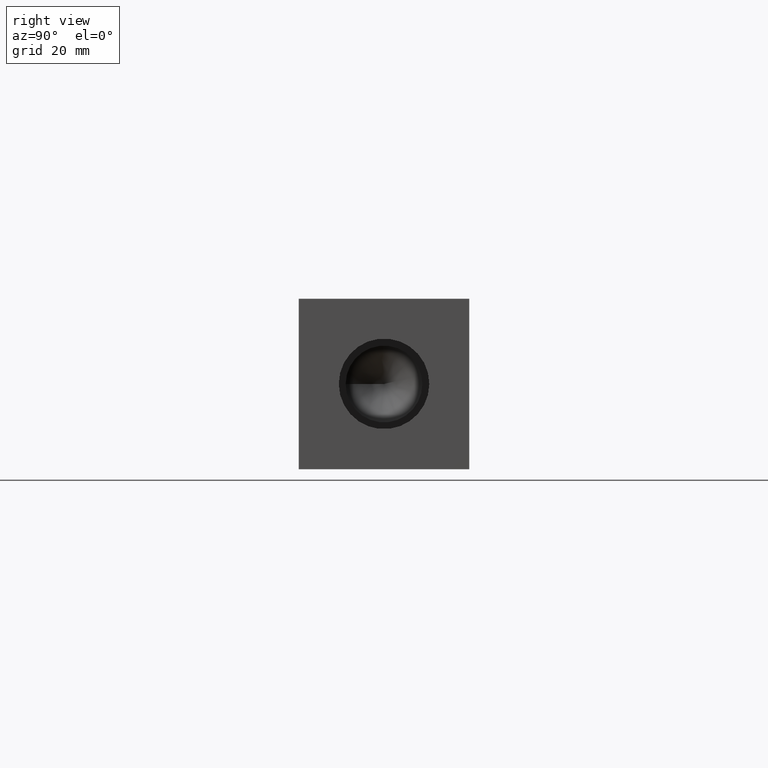
[diagram: clean part render]
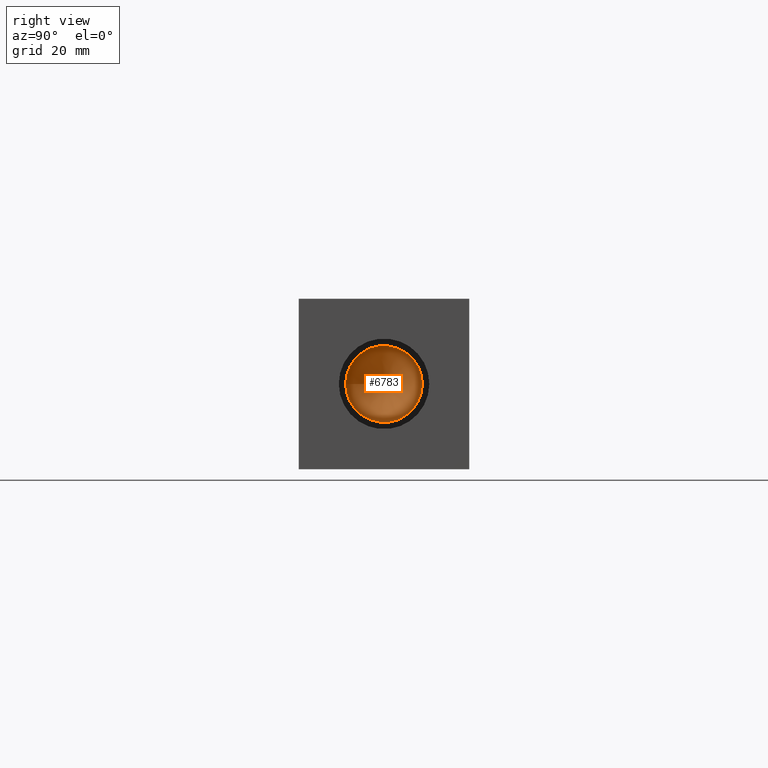
[diagram: same view with one face highlighted and labeled with its STEP entity id]
A machine part, right view. The second image highlights one B-rep face of the part: STEP entity #6783.
In plain terms, the highlighted conical surface has half-angle 60 deg.
Its self-contained STEP definition (entity closure, byte-faithful):
#17=CONICAL_SURFACE('',#7084,7.14375,1.0471975511966);
#78=CIRCLE('',#7085,14.2875);
#79=CIRCLE('',#7086,14.2875);
#687=FACE_OUTER_BOUND('',#1063,.T.);
#1063=EDGE_LOOP('',(#5990,#5991,#5992,#5993));
#1758=LINE('',#11475,#2443);
#2443=VECTOR('',#8335,7.14375);
#3251=VERTEX_POINT('',#11471);
#3252=VERTEX_POINT('',#11472);
#3253=VERTEX_POINT('',#11474);
#4173=EDGE_CURVE('',#3251,#3252,#78,.T.);
#4174=EDGE_CURVE('',#3252,#3253,#1758,.T.);
#4175=EDGE_CURVE('',#3252,#3251,#79,.T.);
#5990=ORIENTED_EDGE('',*,*,#4173,.T.);
#5991=ORIENTED_EDGE('',*,*,#4174,.T.);
#5992=ORIENTED_EDGE('',*,*,#4174,.F.);
#5993=ORIENTED_EDGE('',*,*,#4175,.T.);
#6783=ADVANCED_FACE('',(#687),#17,.F.);
#7084=AXIS2_PLACEMENT_3D('',#11470,#8331,#8332);
#7085=AXIS2_PLACEMENT_3D('',#11473,#8333,#8334);
#7086=AXIS2_PLACEMENT_3D('',#11476,#8336,#8337);
#8331=DIRECTION('center_axis',(1.,0.,0.));
#8332=DIRECTION('ref_axis',(0.,1.,0.));
#8333=DIRECTION('center_axis',(1.,0.,0.));
#8334=DIRECTION('ref_axis',(0.,1.,0.));
#8335=DIRECTION('',(-0.5,0.866025403784438,1.06057523872491E-16));
#8336=DIRECTION('center_axis',(1.,0.,0.));
#8337=DIRECTION('ref_axis',(0.,1.,0.));
#11470=CARTESIAN_POINT('Origin',(233.226464014477,31.75,31.75));
#11471=CARTESIAN_POINT('',(237.35091,46.0375,31.75));
#11472=CARTESIAN_POINT('',(237.35091,17.4625,31.75));
#11473=CARTESIAN_POINT('Origin',(237.35091,31.75,31.75));
#11474=CARTESIAN_POINT('',(229.102018028953,31.75,31.75));
#11475=CARTESIAN_POINT('',(233.226464014477,24.60625,31.75));
#11476=CARTESIAN_POINT('Origin',(237.35091,31.75,31.75));